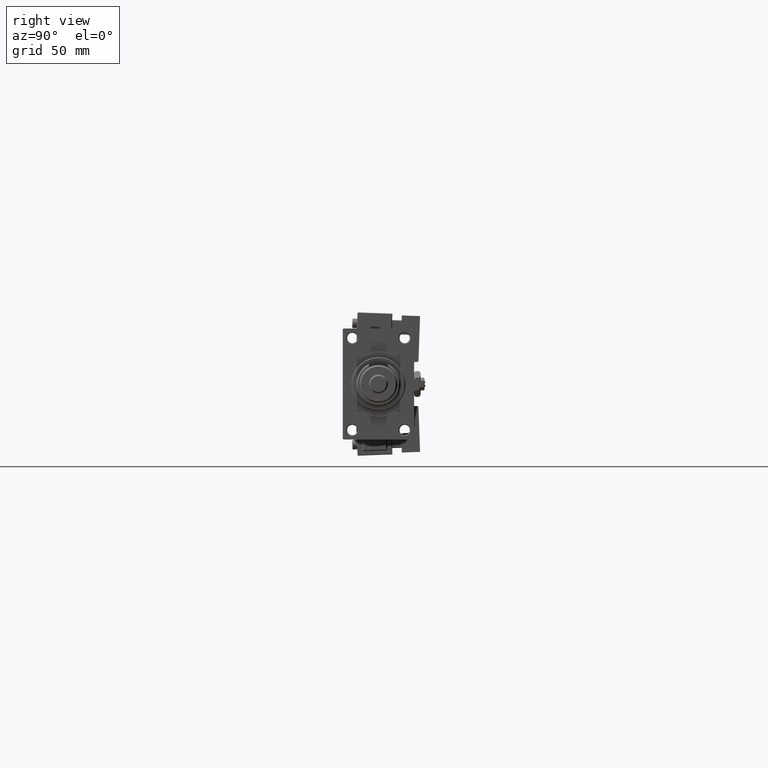
[diagram: clean part render]
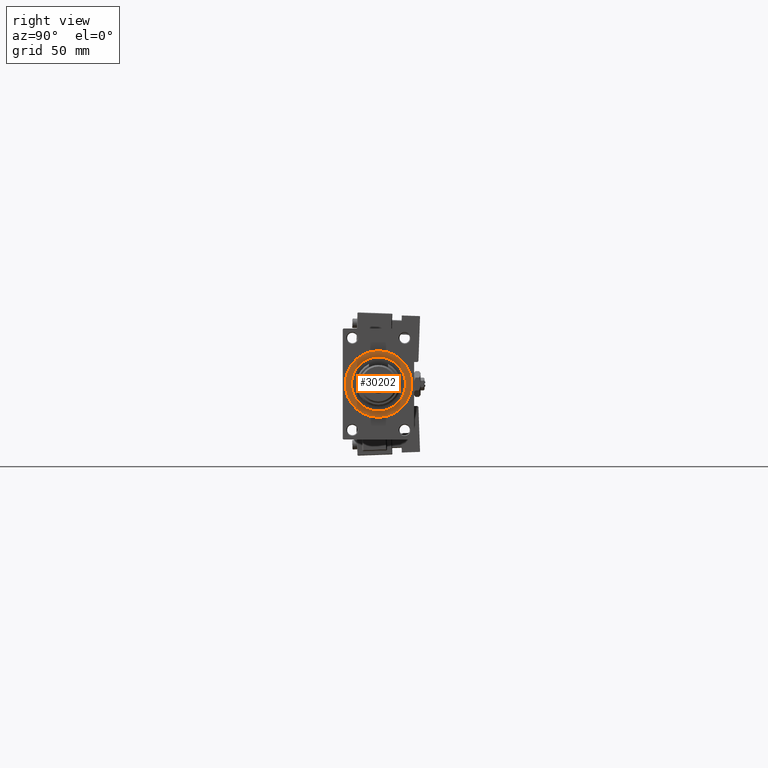
[diagram: same view with one face highlighted and labeled with its STEP entity id]
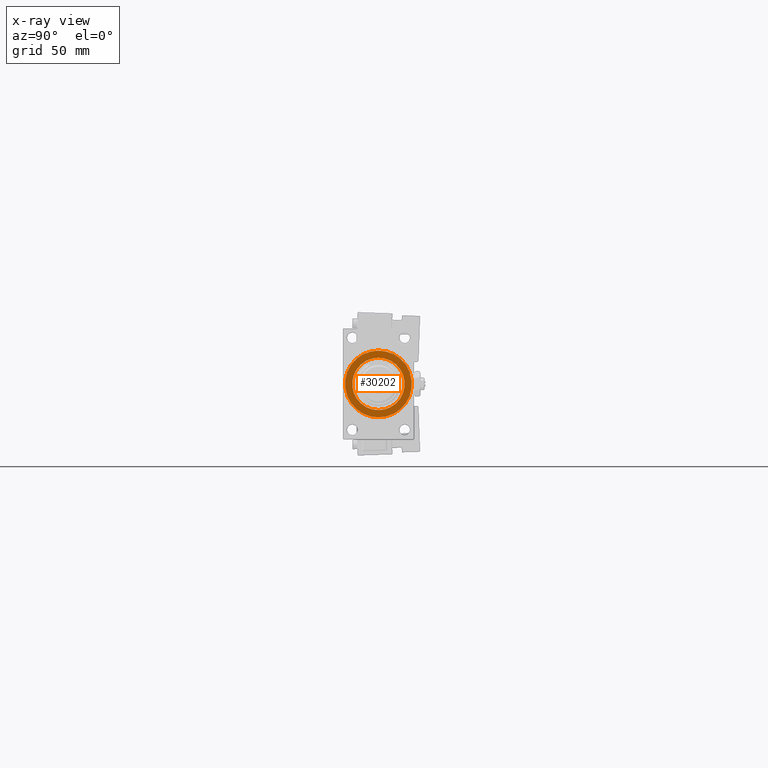
[diagram: x-ray of the same camera — body ghosted, the highlighted face saturated]
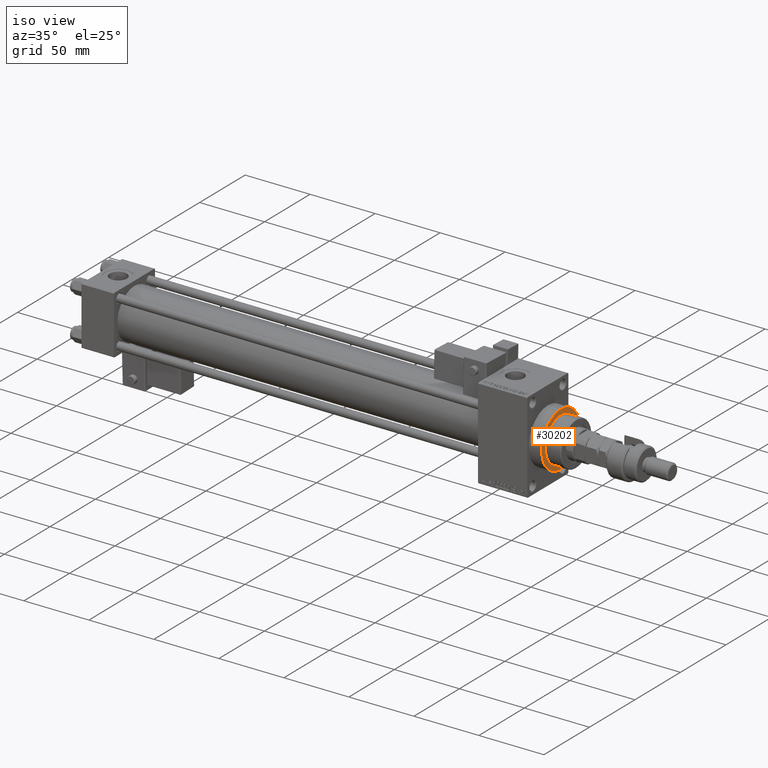
[diagram: same view with one face highlighted and labeled with its STEP entity id]
A machine part, right view. The second image highlights one B-rep face of the part: STEP entity #30202.
The next image is the same camera in x-ray: the body ghosted, the highlighted face saturated — about 0% of this face is hidden behind the body in this view.
A second angle (iso view) of the same face is appended — the face is thin or edge-on in the first view.
In plain terms, the highlighted planar face has unit normal (1, 0, 0).
Its self-contained STEP definition (entity closure, byte-faithful):
#1914 = VERTEX_POINT ( 'NONE', #27357 ) ;
#2417 = PLANE ( 'NONE',  #14671 ) ;
#3896 = CIRCLE ( 'NONE', #36269, 21.00000000000000000 ) ;
#5905 = EDGE_LOOP ( 'NONE', ( #44370, #7859 ) ) ;
#7859 = ORIENTED_EDGE ( 'NONE', *, *, #30639, .T. ) ;
#8662 = CARTESIAN_POINT ( 'NONE',  ( 353.0000000000000568, 2.020667218593133100E-15, 16.50000000000000000 ) ) ;
#8688 = DIRECTION ( 'NONE',  ( 0.000000000000000000, 0.000000000000000000, -1.000000000000000000 ) ) ;
#9174 = EDGE_CURVE ( 'NONE', #50552, #39030, #50766, .T. ) ;
#10606 = CARTESIAN_POINT ( 'NONE',  ( 353.0000000000000568, 0.000000000000000000, -16.50000000000000000 ) ) ;
#12919 = EDGE_CURVE ( 'NONE', #39030, #50552, #25405, .T. ) ;
#13745 = DIRECTION ( 'NONE',  ( 0.000000000000000000, 0.000000000000000000, -1.000000000000000000 ) ) ;
#14671 = AXIS2_PLACEMENT_3D ( 'NONE', #40225, #28405, #45122 ) ;
#20121 = AXIS2_PLACEMENT_3D ( 'NONE', #53777, #51016, #41443 ) ;
#20959 = DIRECTION ( 'NONE',  ( 0.000000000000000000, 0.000000000000000000, -1.000000000000000000 ) ) ;
#21002 = AXIS2_PLACEMENT_3D ( 'NONE', #40961, #24772, #20959 ) ;
#24289 = FACE_OUTER_BOUND ( 'NONE', #5905, .T. ) ;
#24772 = DIRECTION ( 'NONE',  ( 1.000000000000000000, 0.000000000000000000, 0.000000000000000000 ) ) ;
#25405 = CIRCLE ( 'NONE', #20121, 16.50000000000000000 ) ;
#26084 = AXIS2_PLACEMENT_3D ( 'NONE', #30721, #43864, #13745 ) ;
#27357 = CARTESIAN_POINT ( 'NONE',  ( 353.0000000000000568, 0.000000000000000000, 21.00000000000000000 ) ) ;
#28405 = DIRECTION ( 'NONE',  ( 1.000000000000000000, 0.000000000000000000, 0.000000000000000000 ) ) ;
#28949 = CARTESIAN_POINT ( 'NONE',  ( 353.0000000000000568, 0.000000000000000000, 0.000000000000000000 ) ) ;
#30202 = ADVANCED_FACE ( 'NONE', ( #49240, #24289 ), #2417, .T. ) ;
#30639 = EDGE_CURVE ( 'NONE', #47579, #1914, #49710, .T. ) ;
#30721 = CARTESIAN_POINT ( 'NONE',  ( 353.0000000000000568, 0.000000000000000000, 0.000000000000000000 ) ) ;
#33875 = DIRECTION ( 'NONE',  ( 1.000000000000000000, 0.000000000000000000, 0.000000000000000000 ) ) ;
#34964 = CARTESIAN_POINT ( 'NONE',  ( 353.0000000000000568, 2.571758278209441661E-15, -21.00000000000000000 ) ) ;
#36269 = AXIS2_PLACEMENT_3D ( 'NONE', #28949, #33875, #8688 ) ;
#39030 = VERTEX_POINT ( 'NONE', #8662 ) ;
#40225 = CARTESIAN_POINT ( 'NONE',  ( 353.0000000000000568, 0.000000000000000000, 0.000000000000000000 ) ) ;
#40961 = CARTESIAN_POINT ( 'NONE',  ( 353.0000000000000568, 0.000000000000000000, 0.000000000000000000 ) ) ;
#41443 = DIRECTION ( 'NONE',  ( 0.000000000000000000, 0.000000000000000000, -1.000000000000000000 ) ) ;
#43864 = DIRECTION ( 'NONE',  ( 1.000000000000000000, 0.000000000000000000, 0.000000000000000000 ) ) ;
#44240 = EDGE_LOOP ( 'NONE', ( #52064, #52726 ) ) ;
#44370 = ORIENTED_EDGE ( 'NONE', *, *, #46376, .T. ) ;
#45122 = DIRECTION ( 'NONE',  ( 0.000000000000000000, 0.000000000000000000, -1.000000000000000000 ) ) ;
#46376 = EDGE_CURVE ( 'NONE', #1914, #47579, #3896, .T. ) ;
#47579 = VERTEX_POINT ( 'NONE', #34964 ) ;
#49240 = FACE_BOUND ( 'NONE', #44240, .T. ) ;
#49710 = CIRCLE ( 'NONE', #26084, 21.00000000000000000 ) ;
#50552 = VERTEX_POINT ( 'NONE', #10606 ) ;
#50766 = CIRCLE ( 'NONE', #21002, 16.50000000000000000 ) ;
#51016 = DIRECTION ( 'NONE',  ( 1.000000000000000000, 0.000000000000000000, 0.000000000000000000 ) ) ;
#52064 = ORIENTED_EDGE ( 'NONE', *, *, #9174, .F. ) ;
#52726 = ORIENTED_EDGE ( 'NONE', *, *, #12919, .F. ) ;
#53777 = CARTESIAN_POINT ( 'NONE',  ( 353.0000000000000568, 0.000000000000000000, 0.000000000000000000 ) ) ;